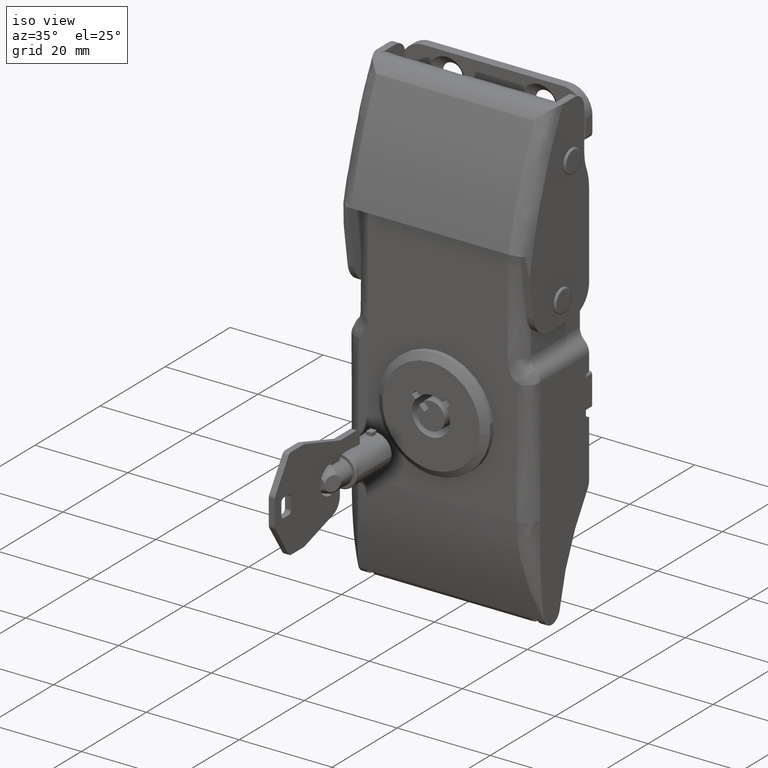
[diagram: clean part render]
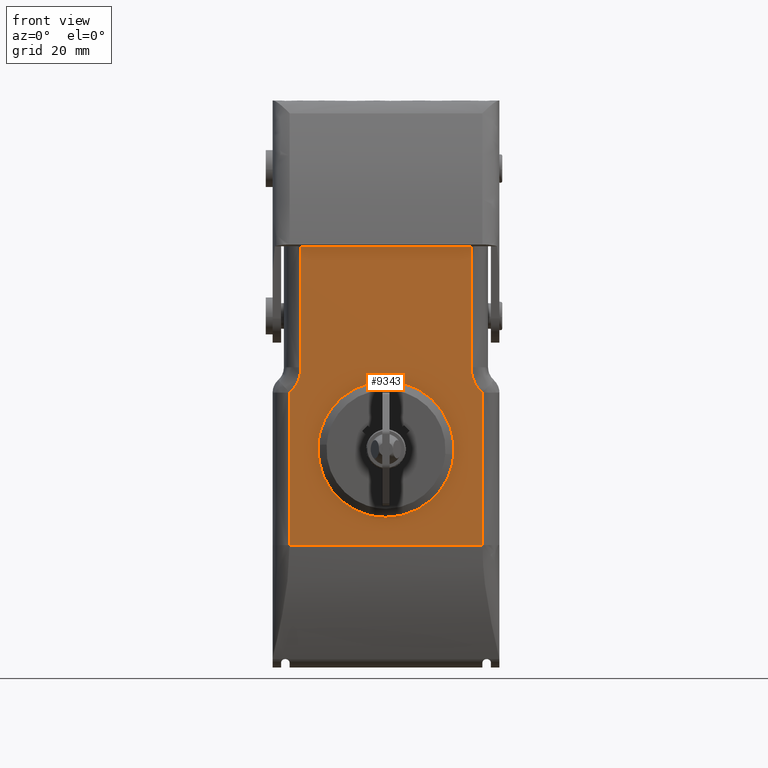
[diagram: tour spotlight — one face highlighted and labeled with its STEP entity id]
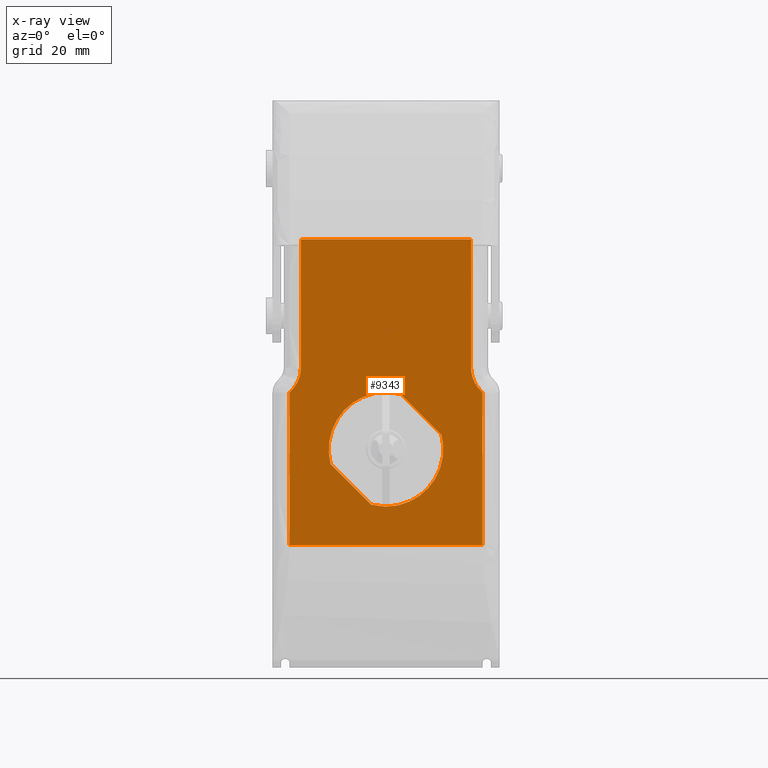
[diagram: x-ray of the same camera — body ghosted, this tour face saturated]
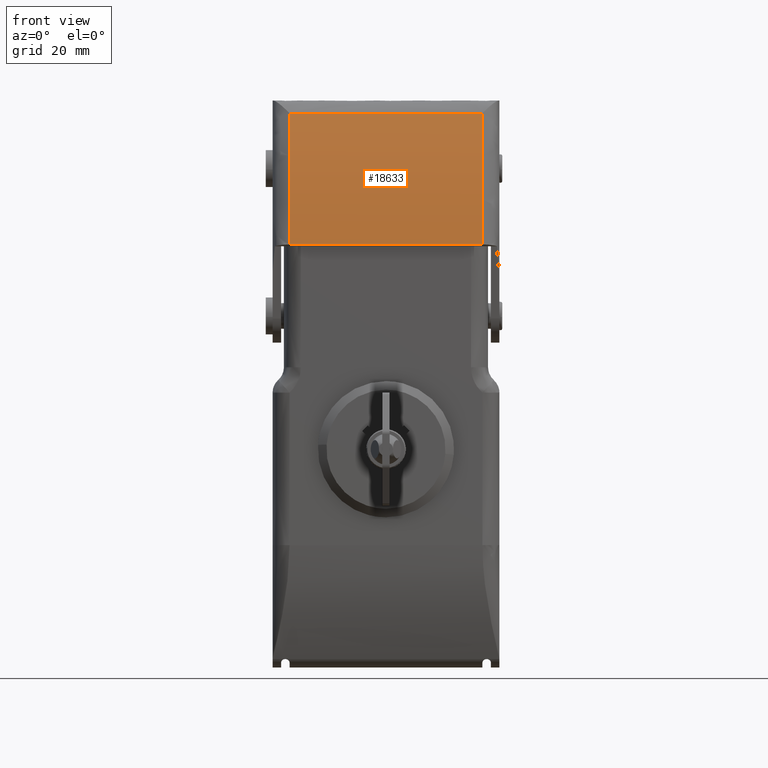
[diagram: tour spotlight — one face highlighted and labeled with its STEP entity id]
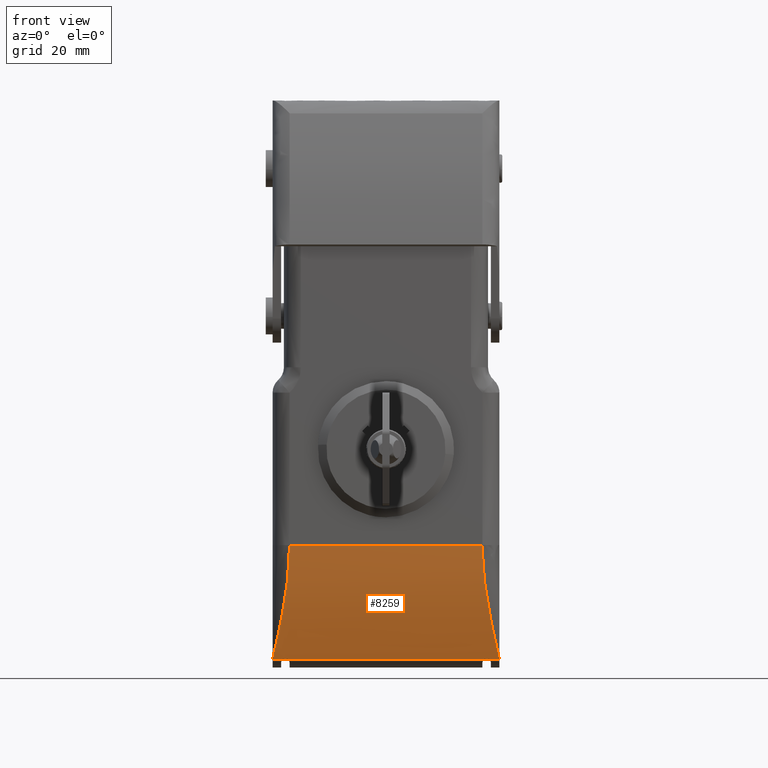
[diagram: tour spotlight — one face highlighted and labeled with its STEP entity id]
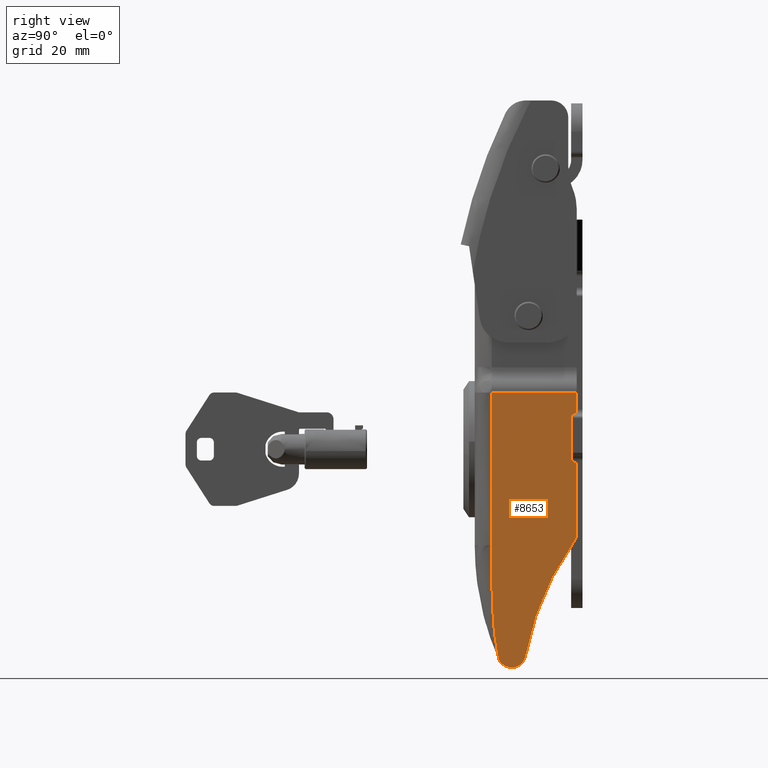
[diagram: tour spotlight — one face highlighted and labeled with its STEP entity id]
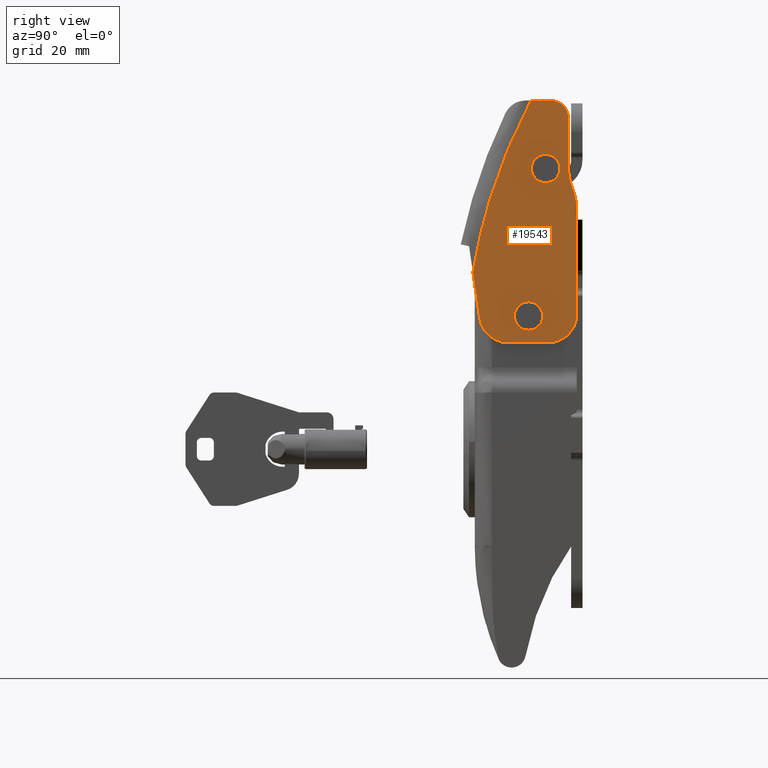
[diagram: tour spotlight — one face highlighted and labeled with its STEP entity id]
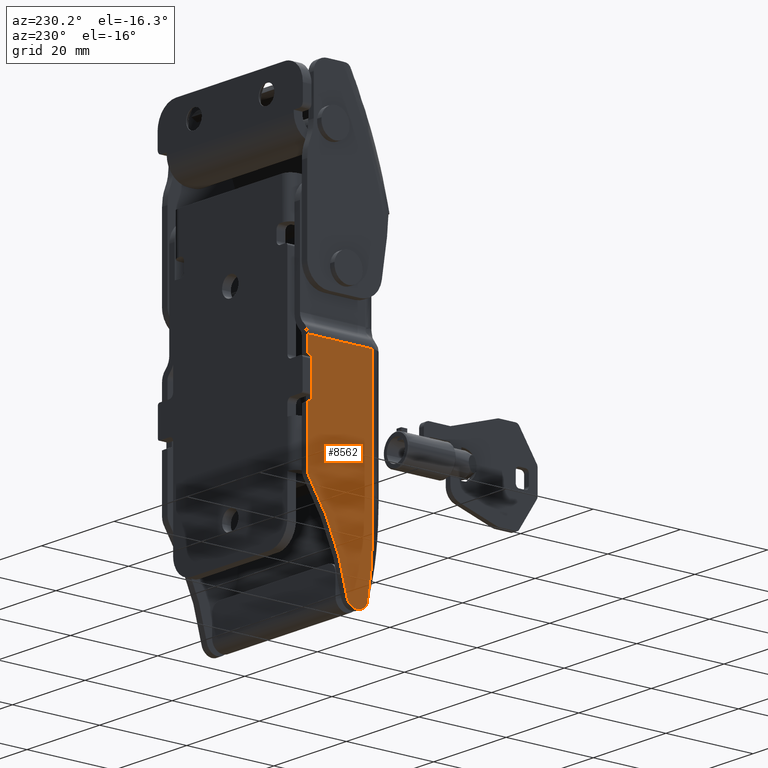
[diagram: tour spotlight — one face highlighted and labeled with its STEP entity id]
A machine part: a face-by-face anatomy tour. The part has 404 B-rep faces; the first image is the clean iso view, then the 6 largest visible faces are spotlighted one at a time (largest first), each with its STEP entity span.

Face 1 — front view, entity #9343. An x-ray twin of the same camera follows (body ghosted, this face saturated) — the face is partly hidden behind the body. In plain terms, the highlighted face is a freeform B-spline surface patch.
Definition (entity closure, byte-faithful):
#6194=CARTESIAN_POINT('',(2.620147750134060,-19.000000000005450,-13.283217527632200));
#6195=VERTEX_POINT('',#6194);
#6201=CARTESIAN_POINT('',(-9.754220920606741,-19.000000000002998,-25.657586198420550));
#6202=VERTEX_POINT('',#6201);
#6203=CARTESIAN_POINT('',(2.620147750134060,-19.000000000005450,-13.283217527632200));
#6204=CARTESIAN_POINT('',(-3.015504977081083,-19.000000000003002,-11.769386445243466));
#6205=CARTESIAN_POINT('',(-7.141778490049104,-19.000000000002998,-15.895659958227339));
#6206=CARTESIAN_POINT('',(-11.268052003017125,-19.000000000003002,-20.021933471211216));
#6207=CARTESIAN_POINT('',(-9.754220920606745,-19.000000000002998,-25.657586198420550));
#6215=(BOUNDED_CURVE()B_SPLINE_CURVE(2,(#6203,#6204,#6205,#6206,#6207),.UNSPECIFIED.,.F.,.U.)B_SPLINE_CURVE_WITH_KNOTS((3,2,3),(0.0,0.500000000000000,1.0),.UNSPECIFIED.)CURVE()GEOMETRIC_REPRESENTATION_ITEM()RATIONAL_B_SPLINE_CURVE((1.0,0.865869662871492,1.0,0.865869662871492,1.0))REPRESENTATION_ITEM(''));
#6216=EDGE_CURVE('',#6195,#6202,#6215,.T.);
#6256=CARTESIAN_POINT('',(-2.620147750274040,-19.000000000002998,-32.791659368753251));
#6257=VERTEX_POINT('',#6256);
#6258=CARTESIAN_POINT('',(-2.620147750274040,-19.000000000002998,-32.791659368753251));
#6259=CARTESIAN_POINT('',(-9.754220920606741,-19.000000000002998,-25.657586198420550));
#6260=QUASI_UNIFORM_CURVE('',1,(#6258,#6259),.UNSPECIFIED.,.F.,.U.);
#6261=EDGE_CURVE('',#6257,#6202,#6260,.T.);
#6286=CARTESIAN_POINT('',(9.754220920514301,-19.000000000002998,-20.417290698012401));
#6287=VERTEX_POINT('',#6286);
#6288=CARTESIAN_POINT('',(-2.620147750274037,-19.000000000002998,-32.791659368753237));
#6289=CARTESIAN_POINT('',(3.015504976935295,-19.000000000003002,-34.305490451163621));
#6290=CARTESIAN_POINT('',(7.141778489919166,-19.000000000002998,-30.179216938195591));
#6291=CARTESIAN_POINT('',(11.268052002903039,-19.000000000003002,-26.052943425227554));
#6292=CARTESIAN_POINT('',(9.754220920514298,-19.000000000002998,-20.417290698012408));
#6300=(BOUNDED_CURVE()B_SPLINE_CURVE(2,(#6288,#6289,#6290,#6291,#6292),.UNSPECIFIED.,.F.,.U.)B_SPLINE_CURVE_WITH_KNOTS((3,2,3),(0.0,0.500000000000000,1.0),.UNSPECIFIED.)CURVE()GEOMETRIC_REPRESENTATION_ITEM()RATIONAL_B_SPLINE_CURVE((1.0,0.865869662871492,1.0,0.865869662871492,1.0))REPRESENTATION_ITEM(''));
#6301=EDGE_CURVE('',#6257,#6287,#6300,.T.);
#6339=CARTESIAN_POINT('',(2.620147750134060,-19.000000000005450,-13.283217527632200));
#6340=CARTESIAN_POINT('',(9.754220920514301,-19.000000000002998,-20.417290698012401));
#6341=QUASI_UNIFORM_CURVE('',1,(#6339,#6340),.UNSPECIFIED.,.F.,.U.);
#6342=EDGE_CURVE('',#6195,#6287,#6341,.T.);
#6548=CARTESIAN_POINT('',(-17.000000000068301,-19.000000000003201,-39.921215972049502));
#6549=VERTEX_POINT('',#6548);
#6648=CARTESIAN_POINT('',(-17.000000000031552,-19.000000000002998,-13.018624220187499));
#6649=VERTEX_POINT('',#6648);
#6675=CARTESIAN_POINT('',(-17.000000000031552,-19.000000000002998,-13.018624220187499));
#6676=CARTESIAN_POINT('',(-17.000000000068251,-19.000000000002998,-21.986154804139801));
#6677=CARTESIAN_POINT('',(-17.000000000068251,-19.000000000002998,-30.953685388094652));
#6678=CARTESIAN_POINT('',(-17.000000000068301,-19.000000000003201,-39.921215972049502));
#6679=QUASI_UNIFORM_CURVE('',3,(#6675,#6676,#6677,#6678),.UNSPECIFIED.,.F.,.U.);
#6680=EDGE_CURVE('',#6649,#6549,#6679,.T.);
#6769=CARTESIAN_POINT('',(-15.000000000030351,-19.000000000002998,-8.546488265197050));
#6770=VERTEX_POINT('',#6769);
#6796=CARTESIAN_POINT('',(-15.000000000030351,-19.000000000002998,-8.546488265197050));
#6797=CARTESIAN_POINT('',(-15.000221131365899,-19.000000000002998,-9.817609685966653));
#6798=CARTESIAN_POINT('',(-15.526368155031060,-19.000000000002998,-10.994370843038800));
#6799=CARTESIAN_POINT('',(-16.052320885687980,-19.000000000002998,-12.170697451487699));
#6800=CARTESIAN_POINT('',(-17.000000000031552,-19.000000000002998,-13.018624220187499));
#6801=B_SPLINE_CURVE_WITH_KNOTS('',2,(#6796,#6797,#6798,#6799,#6800),.UNSPECIFIED.,.F.,.U.,(3,2,3),(0.0,0.500000000000000,1.0),.UNSPECIFIED.);
#6802=EDGE_CURVE('',#6770,#6649,#6801,.T.);
#6829=CARTESIAN_POINT('',(-14.999999999975801,-19.000000000002998,13.999999999585979));
#6830=VERTEX_POINT('',#6829);
#6852=CARTESIAN_POINT('',(-14.999999999975801,-19.000000000002998,13.999999999585979));
#6853=CARTESIAN_POINT('',(-14.999999999993960,-19.000000000002998,6.484503911324969));
#6854=CARTESIAN_POINT('',(-15.000000000012150,-19.000000000002998,-1.030992176936040));
#6855=CARTESIAN_POINT('',(-15.000000000030351,-19.000000000002998,-8.546488265197050));
#6856=B_SPLINE_CURVE_WITH_KNOTS('',3,(#6852,#6853,#6854,#6855),.UNSPECIFIED.,.F.,.U.,(4,4),(0.0,0.333333333333333),.UNSPECIFIED.);
#6857=EDGE_CURVE('',#6830,#6770,#6856,.T.);
#6914=CARTESIAN_POINT('',(16.999999999880352,-19.000000000003201,-39.921215972049502));
#6915=VERTEX_POINT('',#6914);
#7035=CARTESIAN_POINT('',(16.999999999973600,-19.000000000002998,-13.018624220263160));
#7036=VERTEX_POINT('',#7035);
#7052=CARTESIAN_POINT('',(16.999999999880352,-19.000000000003201,-39.921215972049502));
#7053=CARTESIAN_POINT('',(16.999999999880352,-19.000000000002998,-30.953685388124299));
#7054=CARTESIAN_POINT('',(16.999999999880352,-19.000000000002998,-21.986154804199099));
#7055=CARTESIAN_POINT('',(16.999999999973600,-19.000000000002998,-13.018624220263160));
#7056=QUASI_UNIFORM_CURVE('',3,(#7052,#7053,#7054,#7055),.UNSPECIFIED.,.F.,.U.);
#7057=EDGE_CURVE('',#6915,#7036,#7056,.T.);
#7166=CARTESIAN_POINT('',(14.999999999992280,-19.000000000002998,-8.546488265263811));
#7167=VERTEX_POINT('',#7166);
#7181=CARTESIAN_POINT('',(16.999999999973600,-19.000000000002998,-13.018624220263160));
#7182=CARTESIAN_POINT('',(16.052709452708982,-19.000000000002998,-12.171045118246450));
#7183=CARTESIAN_POINT('',(15.526368154977989,-19.000000000002998,-10.994370843110801));
#7184=CARTESIAN_POINT('',(15.000221222033041,-19.000000000002998,-9.818131084599553));
#7185=CARTESIAN_POINT('',(14.999999999992280,-19.000000000002998,-8.546488265263811));
#7186=B_SPLINE_CURVE_WITH_KNOTS('',2,(#7181,#7182,#7183,#7184,#7185),.UNSPECIFIED.,.F.,.U.,(3,2,3),(0.0,0.500000000000000,1.0),.UNSPECIFIED.);
#7187=EDGE_CURVE('',#7036,#7167,#7186,.T.);
#7212=CARTESIAN_POINT('',(15.000000000038099,-19.000000000002998,13.999999999585979));
#7213=VERTEX_POINT('',#7212);
#7229=CARTESIAN_POINT('',(14.999999999992280,-19.000000000002998,-8.546488265263811));
#7230=CARTESIAN_POINT('',(15.000000000007550,-19.000000000002998,-1.030992176978514));
#7231=CARTESIAN_POINT('',(15.000000000022849,-19.000000000002998,6.484503911306780));
#7232=CARTESIAN_POINT('',(15.000000000038099,-19.000000000002998,13.999999999585979));
#7233=B_SPLINE_CURVE_WITH_KNOTS('',3,(#7229,#7230,#7231,#7232),.UNSPECIFIED.,.F.,.U.,(4,4),(0.0,0.333333333333333),.UNSPECIFIED.);
#7234=EDGE_CURVE('',#7167,#7213,#7233,.T.);
#8239=CARTESIAN_POINT('',(16.999999999880352,-19.000000000003201,-39.921215972049502));
#8240=CARTESIAN_POINT('',(-17.000000000068301,-19.000000000003201,-39.921215972049502));
#8241=QUASI_UNIFORM_CURVE('',1,(#8239,#8240),.UNSPECIFIED.,.F.,.U.);
#8242=EDGE_CURVE('',#6915,#6549,#8241,.T.);
#8667=CARTESIAN_POINT('',(15.000000000038099,-19.000000000002998,13.999999999585979));
#8668=CARTESIAN_POINT('',(-14.999999999975801,-19.000000000002998,13.999999999585979));
#8669=QUASI_UNIFORM_CURVE('',1,(#8667,#8668),.UNSPECIFIED.,.F.,.U.);
#8670=EDGE_CURVE('',#7213,#6830,#8669,.T.);
#9322=CARTESIAN_POINT('',(-18.698299934171800,-19.000000000002998,16.693364440214939));
#9323=CARTESIAN_POINT('',(-18.698299934171800,-19.000000000002998,-42.614578002212284));
#9324=CARTESIAN_POINT('',(18.698300846028161,-19.000000000002998,16.693364440214939));
#9325=CARTESIAN_POINT('',(18.698300846028161,-19.000000000002998,-42.614578002212284));
#9326=B_SPLINE_SURFACE_WITH_KNOTS('',1,1,((#9322,#9324),(#9323,#9325)),.UNSPECIFIED.,.F.,.F.,.U.,(2,2),(2,2),(0.0,59.307942442427219),(0.0,37.396600780199961),.UNSPECIFIED.);
#9327=ORIENTED_EDGE('',*,*,#6802,.T.);
#9328=ORIENTED_EDGE('',*,*,#6680,.T.);
#9329=ORIENTED_EDGE('',*,*,#8242,.F.);
#9330=ORIENTED_EDGE('',*,*,#7057,.T.);
#9331=ORIENTED_EDGE('',*,*,#7187,.T.);
#9332=ORIENTED_EDGE('',*,*,#7234,.T.);
#9333=ORIENTED_EDGE('',*,*,#8670,.T.);
#9334=ORIENTED_EDGE('',*,*,#6857,.T.);
#9335=EDGE_LOOP('',(#9327,#9328,#9329,#9330,#9331,#9332,#9333,#9334));
#9336=FACE_OUTER_BOUND('',#9335,.T.);
#9337=ORIENTED_EDGE('',*,*,#6216,.F.);
#9338=ORIENTED_EDGE('',*,*,#6342,.T.);
#9339=ORIENTED_EDGE('',*,*,#6301,.F.);
#9340=ORIENTED_EDGE('',*,*,#6261,.T.);
#9341=EDGE_LOOP('',(#9337,#9338,#9339,#9340));
#9342=FACE_BOUND('',#9341,.T.);
#9343=ADVANCED_FACE('',(#9336,#9342),#9326,.T.);

Face 2 — front view, entity #18633. In plain terms, the highlighted face is a freeform B-spline surface patch.
Definition (entity closure, byte-faithful):
#18165=CARTESIAN_POINT('',(16.999999999976350,-13.604601533551060,36.234026465456452));
#18166=VERTEX_POINT('',#18165);
#18201=CARTESIAN_POINT('',(16.999999999976350,-21.467932435706651,13.108503425658499));
#18202=VERTEX_POINT('',#18201);
#18203=CARTESIAN_POINT('',(16.999999999976350,-21.467932435706590,13.108503425658450));
#18204=CARTESIAN_POINT('',(16.999999999976353,-18.937730875137159,25.147802245904046));
#18205=CARTESIAN_POINT('',(16.999999999976350,-13.604601533551101,36.234026465456438));
#18213=(BOUNDED_CURVE()B_SPLINE_CURVE(2,(#18203,#18204,#18205),.UNSPECIFIED.,.F.,.U.)CURVE()GEOMETRIC_REPRESENTATION_ITEM()QUASI_UNIFORM_CURVE()RATIONAL_B_SPLINE_CURVE((1.0,0.992734632860913,1.0))REPRESENTATION_ITEM(''));
#18214=EDGE_CURVE('',#18202,#18166,#18213,.T.);
#18333=CARTESIAN_POINT('',(-16.999999999997900,-21.467932435706651,13.108503425658499));
#18334=VERTEX_POINT('',#18333);
#18348=CARTESIAN_POINT('',(-16.999999999997900,-13.604601533551060,36.234026465456452));
#18349=VERTEX_POINT('',#18348);
#18350=CARTESIAN_POINT('',(-16.999999999997900,-13.604601533551090,36.234026465456459));
#18351=CARTESIAN_POINT('',(-16.999999999997897,-18.937730875137138,25.147802245904096));
#18352=CARTESIAN_POINT('',(-16.999999999997900,-21.467932435706579,13.108503425658469));
#18360=(BOUNDED_CURVE()B_SPLINE_CURVE(2,(#18350,#18351,#18352),.UNSPECIFIED.,.F.,.U.)CURVE()GEOMETRIC_REPRESENTATION_ITEM()QUASI_UNIFORM_CURVE()RATIONAL_B_SPLINE_CURVE((1.0,0.992734632860913,1.0))REPRESENTATION_ITEM(''));
#18361=EDGE_CURVE('',#18349,#18334,#18360,.T.);
#18505=CARTESIAN_POINT('',(16.999999999976350,-13.604601533551060,36.234026465456452));
#18506=CARTESIAN_POINT('',(-16.999999999997900,-13.604601533551060,36.234026465456452));
#18507=QUASI_UNIFORM_CURVE('',1,(#18505,#18506),.UNSPECIFIED.,.F.,.U.);
#18508=EDGE_CURVE('',#18166,#18349,#18507,.T.);
#18609=CARTESIAN_POINT('',(-17.849999999997259,-21.711438357472375,11.914264314299245));
#18610=CARTESIAN_POINT('',(17.871249999975685,-21.711438357472375,11.914264314299245));
#18611=CARTESIAN_POINT('',(-17.849999999997266,-19.085661781245445,25.198950589309923));
#18612=CARTESIAN_POINT('',(17.871249999975689,-19.085661781245445,25.198950589309923));
#18613=CARTESIAN_POINT('',(-17.849999999997259,-13.068946819403648,37.330592404071346));
#18614=CARTESIAN_POINT('',(17.871249999975696,-13.068946819403648,37.330592404071346));
#18622=(BOUNDED_SURFACE()B_SPLINE_SURFACE(1,2,((#18609,#18611,#18613),(#18610,#18612,#18614)),.UNSPECIFIED.,.F.,.F.,.U.)B_SPLINE_SURFACE_WITH_KNOTS((2,2),(3,3),(0.0,35.721249999972947),(0.0,26.963934712268308),.UNSPECIFIED.)GEOMETRIC_REPRESENTATION_ITEM()RATIONAL_B_SPLINE_SURFACE(((0.998935719609841,0.989486783376291,0.997573255418272),(0.998935719609841,0.989486783376291,0.997573255418272)))REPRESENTATION_ITEM('')SURFACE());
#18623=CARTESIAN_POINT('',(-16.999999999997900,-21.467932435706651,13.108503425658499));
#18624=CARTESIAN_POINT('',(16.999999999976350,-21.467932435706651,13.108503425658499));
#18625=QUASI_UNIFORM_CURVE('',1,(#18623,#18624),.UNSPECIFIED.,.F.,.U.);
#18626=EDGE_CURVE('',#18334,#18202,#18625,.T.);
#18627=ORIENTED_EDGE('',*,*,#18626,.T.);
#18628=ORIENTED_EDGE('',*,*,#18214,.T.);
#18629=ORIENTED_EDGE('',*,*,#18508,.T.);
#18630=ORIENTED_EDGE('',*,*,#18361,.T.);
#18631=EDGE_LOOP('',(#18627,#18628,#18629,#18630));
#18632=FACE_OUTER_BOUND('',#18631,.T.);
#18633=ADVANCED_FACE('',(#18632),#18622,.T.);

Face 3 — front view, entity #8259. In plain terms, the highlighted face is a freeform B-spline surface patch.
Definition (entity closure, byte-faithful):
#6520=CARTESIAN_POINT('',(-20.000000000068201,-14.789473684203299,-60.004146528219202));
#6521=VERTEX_POINT('',#6520);
#6548=CARTESIAN_POINT('',(-17.000000000068301,-19.000000000003201,-39.921215972049502));
#6549=VERTEX_POINT('',#6548);
#6550=CARTESIAN_POINT('',(-17.000000000068301,-19.000000000003201,-39.921215972049502));
#6551=CARTESIAN_POINT('',(-17.000014488893228,-18.999986334286199,-39.949303284006277));
#6552=CARTESIAN_POINT('',(-17.000043488503849,-18.999958982139638,-40.005520478668537));
#6553=CARTESIAN_POINT('',(-17.000276876262891,-18.999737492162350,-40.089909708611309));
#6554=CARTESIAN_POINT('',(-17.000649197988569,-18.999383147900730,-40.174425902272340));
#6555=CARTESIAN_POINT('',(-17.001174146746290,-18.998882337233141,-40.259068815385817));
#6556=CARTESIAN_POINT('',(-17.001848045134420,-18.998237896720109,-40.343838201569959));
#6557=CARTESIAN_POINT('',(-17.002671880747819,-18.997448244783389,-40.428733812224358));
#6558=CARTESIAN_POINT('',(-17.003645388351490,-18.996512985688600,-40.513755396547928));
#6559=CARTESIAN_POINT('',(-17.004768639173012,-18.995431404550828,-40.598902701524800));
#6560=CARTESIAN_POINT('',(-17.006041614075329,-18.994202871523580,-40.684175471918323));
#6561=CARTESIAN_POINT('',(-17.007464318194550,-18.992826733257861,-40.769573450263259));
#6562=CARTESIAN_POINT('',(-17.009036750143661,-18.991302342060159,-40.855096376858349));
#6563=CARTESIAN_POINT('',(-17.010758910291180,-18.989629048069901,-40.940743989758843));
#6564=CARTESIAN_POINT('',(-17.012630798532051,-18.987806201368588,-41.026516024769030));
#6565=CARTESIAN_POINT('',(-17.014652414888641,-18.985833151421598,-41.112412215434588));
#6566=CARTESIAN_POINT('',(-17.016823759350309,-18.983709247236579,-41.198432293035403));
#6567=CARTESIAN_POINT('',(-17.019144831913920,-18.981433837329149,-41.284575986577757));
#6568=CARTESIAN_POINT('',(-17.021615632575489,-18.979006269740751,-41.370843022787113));
#6569=CARTESIAN_POINT('',(-17.024236161330641,-18.976425892042279,-41.457233126100540));
#6570=CARTESIAN_POINT('',(-17.027006418175699,-18.973692051341619,-41.543746018659263));
#6571=CARTESIAN_POINT('',(-17.029926403106028,-18.970804094290440,-41.630381420301063));
#6572=CARTESIAN_POINT('',(-17.032996116118650,-18.967761367090748,-41.717139048554067));
#6573=CARTESIAN_POINT('',(-17.036215557208269,-18.964563215502469,-41.804018618623687));
#6574=CARTESIAN_POINT('',(-17.039584726374379,-18.961208984848430,-41.891019843407257));
#6575=CARTESIAN_POINT('',(-17.043103623601709,-18.957698020027859,-41.978142433402979));
#6576=CARTESIAN_POINT('',(-17.046772248928409,-18.954029665499821,-42.065386097016543));
#6577=CARTESIAN_POINT('',(-17.050590602193498,-18.950203265378072,-42.152750539377692));
#6578=CARTESIAN_POINT('',(-17.054558683982961,-18.946218163109499,-42.240235466732699));
#6579=CARTESIAN_POINT('',(-17.058676492087091,-18.942073702711379,-42.327840569978861));
#6580=CARTESIAN_POINT('',(-17.062944034754398,-18.937769224176751,-42.415565586219763));
#6581=CARTESIAN_POINT('',(-17.076493145986522,-18.924073197104260,-42.685012785873162));
#6582=CARTESIAN_POINT('',(-17.102350998354471,-18.897725144897802,-43.138750067081517));
#6583=CARTESIAN_POINT('',(-17.146136104447400,-18.852357488731592,-43.778870373780677));
#6584=CARTESIAN_POINT('',(-17.197668571514971,-18.798032323794558,-44.426614484048571));
#6585=CARTESIAN_POINT('',(-17.255882175334790,-18.735579187485211,-45.070072958907723));
#6586=CARTESIAN_POINT('',(-17.320403451504941,-18.665165734331019,-45.709667284386263));
#6587=CARTESIAN_POINT('',(-17.390850744056149,-18.586926828610441,-46.345835138194488));
#6588=CARTESIAN_POINT('',(-17.468455959811539,-18.499155851680769,-46.990647346469068));
#6589=CARTESIAN_POINT('',(-17.578826716613818,-18.371982486135011,-47.841311759886779));
#6590=CARTESIAN_POINT('',(-17.731475637076471,-18.191381047685059,-48.908114905676207));
#6591=CARTESIAN_POINT('',(-17.931817713203841,-17.944915474993810,-50.165651056960989));
#6592=CARTESIAN_POINT('',(-18.152756091710270,-17.662186071068401,-51.434163380786622));
#6593=CARTESIAN_POINT('',(-18.385017745897141,-17.352208012547191,-52.673268977552340));
#6594=CARTESIAN_POINT('',(-18.635126251297901,-17.003917334574261,-53.927653995522071));
#6595=CARTESIAN_POINT('',(-18.889329514263611,-16.633330875740612,-55.139948920379183));
#6596=CARTESIAN_POINT('',(-19.160223581939938,-16.219809149917111,-56.378626300691792));
#6597=CARTESIAN_POINT('',(-19.386279051373450,-15.856862138340210,-57.379008302931943));
#6598=CARTESIAN_POINT('',(-19.576670694999521,-15.538751714371219,-58.204644579648942));
#6599=CARTESIAN_POINT('',(-19.678080774618721,-15.364632646699210,-58.639724913974597));
#6600=CARTESIAN_POINT('',(-19.744899915870459,-15.247949311697180,-58.924691356725653));
#6601=CARTESIAN_POINT('',(-19.772656447951061,-15.199233007994870,-59.042850455025743));
#6602=CARTESIAN_POINT('',(-19.803354425820551,-15.145035373498301,-59.173307494944353));
#6603=CARTESIAN_POINT('',(-19.836994555649291,-15.085250678385581,-59.316017205764609));
#6604=CARTESIAN_POINT('',(-19.873576618653200,-15.019767850027121,-59.470931546348837));
#6605=CARTESIAN_POINT('',(-19.913100892187110,-14.948447374879301,-59.637989169086772));
#6606=CARTESIAN_POINT('',(-19.955566562804020,-14.871218474116970,-59.817158179999304));
#6607=CARTESIAN_POINT('',(-19.984863187623208,-14.817321080881451,-59.940446582173038));
#6608=CARTESIAN_POINT('',(-20.000000000068201,-14.789473684203299,-60.004146528219202));
#6609=B_SPLINE_CURVE_WITH_KNOTS('',3,(#6550,#6551,#6552,#6553,#6554,#6555,#6556,#6557,#6558,#6559,#6560,#6561,#6562,#6563,#6564,#6565,#6566,#6567,#6568,#6569,#6570,#6571,#6572,#6573,#6574,#6575,#6576,#6577,#6578,#6579,#6580,#6581,#6582,#6583,#6584,#6585,#6586,#6587,#6588,#6589,#6590,#6591,#6592,#6593,#6594,#6595,#6596,#6597,#6598,#6599,#6600,#6601,#6602,#6603,#6604,#6605,#6606,#6607,#6608),.UNSPECIFIED.,.F.,.U.,(4,1,1,1,1,1,1,1,1,1,1,1,1,1,1,1,1,1,1,1,1,1,1,1,1,1,1,1,1,1,1,1,1,1,1,1,1,1,1,1,1,1,1,1,1,1,1,1,1,1,1,1,1,1,1,1,4),(0.0,0.004026865276500,0.008059833902090,0.012098918514795,0.016144131695300,0.020195485967217,0.024252993797276,0.028316667595584,0.032386519715831,0.036462562455553,0.040544808056309,0.044633268703967,0.048727956528893,0.052828883606193,0.056936061955954,0.061049503543447,0.065169220279386,0.069295224020127,0.073427526567912,0.077566139671107,0.081711075024402,0.085862344269071,0.090019958993167,0.094183930731783,0.098354270967246,0.102530991129370,0.106714102595671,0.110903616691585,0.115099544690715,0.119301897815038,0.123510687235137,0.153828699650016,0.184565313295252,0.215724344124444,0.247309454977977,0.277621783161750,0.308435494346749,0.339753298900463,0.371577778378164,0.432756947394254,0.496388202241362,0.557504892241172,0.621735096837420,0.682490309740912,0.747541765285574,0.807074915383985,0.873681959743895,0.903496617208914,0.936829664324569,0.942421555095257,0.948671846255288,0.955580537827662,0.963147629789777,0.971373122084378,0.980257014626471,0.989799307307813,1.0),.UNSPECIFIED.);
#6610=EDGE_CURVE('',#6549,#6521,#6609,.T.);
#6912=CARTESIAN_POINT('',(19.999999999880352,-14.789473684203299,-60.004146528219202));
#6913=VERTEX_POINT('',#6912);
#6914=CARTESIAN_POINT('',(16.999999999880352,-19.000000000003201,-39.921215972049502));
#6915=VERTEX_POINT('',#6914);
#6916=CARTESIAN_POINT('',(19.999999999880352,-14.789473684203299,-60.004146528219202));
#6917=CARTESIAN_POINT('',(19.992755373208901,-14.802820236509710,-59.973668502330277));
#6918=CARTESIAN_POINT('',(19.978482421716450,-14.829114854890801,-59.913622428904873));
#6919=CARTESIAN_POINT('',(19.957400509514379,-14.867737332260131,-59.824820729545223));
#6920=CARTESIAN_POINT('',(19.936969780174142,-14.905019323141470,-59.738685572551653));
#6921=CARTESIAN_POINT('',(19.917190434250401,-14.940960495786950,-59.655217036878682));
#6922=CARTESIAN_POINT('',(19.898062420149991,-14.975579639936109,-59.574423584599558));
#6923=CARTESIAN_POINT('',(19.879585750635460,-15.008890075928280,-59.496311205699392));
#6924=CARTESIAN_POINT('',(19.861760422003201,-15.040905931597511,-59.420886195368830));
#6925=CARTESIAN_POINT('',(19.844586434662471,-15.071640539569859,-59.348154451125737));
#6926=CARTESIAN_POINT('',(19.828063787921320,-15.101106842862681,-59.278121656716337));
#6927=CARTESIAN_POINT('',(19.812192481174531,-15.129317289625771,-59.210793240248307));
#6928=CARTESIAN_POINT('',(19.796972513997112,-15.156283857740011,-59.146174389422320));
#6929=CARTESIAN_POINT('',(19.782403884630892,-15.182018046509970,-59.084270052338802));
#6930=CARTESIAN_POINT('',(19.768486595450110,-15.206530877095901,-59.025084941007933));
#6931=CARTESIAN_POINT('',(19.755220633697551,-15.229832889709160,-58.968623536694921));
#6932=CARTESIAN_POINT('',(19.742606038230718,-15.251934145623750,-58.914890085275502));
#6933=CARTESIAN_POINT('',(19.730642668300739,-15.272844214525900,-58.863888627317827));
#6934=CARTESIAN_POINT('',(19.673597961659961,-15.372332445191640,-58.620484754977099));
#6935=CARTESIAN_POINT('',(19.576673448944302,-15.538745955501110,-58.204659213015717));
#6936=CARTESIAN_POINT('',(19.386286136963239,-15.856851182398501,-57.379037608491267));
#6937=CARTESIAN_POINT('',(19.160226817948669,-16.219803982262970,-56.378641098494882));
#6938=CARTESIAN_POINT('',(18.889335992416740,-16.633321215129008,-55.139979125418733));
#6939=CARTESIAN_POINT('',(18.635129464510591,-17.003912833203970,-53.927669402488618));
#6940=CARTESIAN_POINT('',(18.385023745218280,-17.352199794941221,-52.673300119969902));
#6941=CARTESIAN_POINT('',(18.152758998066819,-17.662182346210422,-51.434179105271241));
#6942=CARTESIAN_POINT('',(17.931822990187289,-17.944908845670032,-50.165682718694548));
#6943=CARTESIAN_POINT('',(17.731478017690819,-18.191378130997990,-48.908130851202273));
#6944=CARTESIAN_POINT('',(17.578830779241951,-18.371978066571259,-47.841339738592588));
#6945=CARTESIAN_POINT('',(17.468459050510980,-18.499151730136340,-46.990675450520321));
#6946=CARTESIAN_POINT('',(17.390855418538731,-18.586921619415381,-46.345875344376012));
#6947=CARTESIAN_POINT('',(17.320406900274531,-18.665162553091449,-45.709695468202568));
#6948=CARTESIAN_POINT('',(17.255884488502570,-18.735576679498230,-45.070097174658933));
#6949=CARTESIAN_POINT('',(17.197670490235421,-18.798029656606360,-44.426642780736060));
#6950=CARTESIAN_POINT('',(17.146139141507572,-18.852354354550179,-43.778910882234008));
#6951=CARTESIAN_POINT('',(17.102353249568338,-18.897723429476251,-43.138778277759599));
#6952=CARTESIAN_POINT('',(17.075037185830080,-18.925557096400759,-42.659460331567431));
#6953=CARTESIAN_POINT('',(17.059147064987279,-18.941603100839870,-42.338923419829221));
#6954=CARTESIAN_POINT('',(17.051513353372311,-18.949280459880288,-42.174738171385997));
#6955=CARTESIAN_POINT('',(17.044406039388420,-18.956399355348051,-42.010975592595393));
#6956=CARTESIAN_POINT('',(17.037825110791339,-18.962964114571680,-41.847637518692693));
#6957=CARTESIAN_POINT('',(17.031770570868119,-18.968979048998200,-41.684725902606800));
#6958=CARTESIAN_POINT('',(17.026242419187231,-18.974448467346310,-41.522242629295889));
#6959=CARTESIAN_POINT('',(17.021240654744801,-18.979376673773459,-41.360189565500228));
#6960=CARTESIAN_POINT('',(17.016765282511010,-18.983767961170361,-41.198568546685429));
#6961=CARTESIAN_POINT('',(17.012816284245211,-18.987626638732181,-41.037381380744073));
#6962=CARTESIAN_POINT('',(17.009393728238731,-18.990956927850100,-40.876629847225473));
#6963=CARTESIAN_POINT('',(17.006497361160491,-18.993763348500529,-40.716315697763257));
#6964=CARTESIAN_POINT('',(17.004128124899211,-18.996049282577889,-40.556440656166323));
#6965=CARTESIAN_POINT('',(17.002282519725028,-18.997822312073019,-40.397006418665647));
#6966=CARTESIAN_POINT('',(17.000973551738401,-18.999074380789349,-40.238014653873371));
#6967=CARTESIAN_POINT('',(17.000152888302321,-18.999855516343342,-40.079467003736482));
#6968=CARTESIAN_POINT('',(17.000050914481928,-18.999951884339449,-39.973916418844183));
#6969=CARTESIAN_POINT('',(16.999999999880352,-19.000000000003201,-39.921215972049502));
#6970=B_SPLINE_CURVE_WITH_KNOTS('',3,(#6916,#6917,#6918,#6919,#6920,#6921,#6922,#6923,#6924,#6925,#6926,#6927,#6928,#6929,#6930,#6931,#6932,#6933,#6934,#6935,#6936,#6937,#6938,#6939,#6940,#6941,#6942,#6943,#6944,#6945,#6946,#6947,#6948,#6949,#6950,#6951,#6952,#6953,#6954,#6955,#6956,#6957,#6958,#6959,#6960,#6961,#6962,#6963,#6964,#6965,#6966,#6967,#6968,#6969),.UNSPECIFIED.,.F.,.U.,(4,1,1,1,1,1,1,1,1,1,1,1,1,1,1,1,1,1,1,1,1,1,1,1,1,1,1,1,1,1,1,1,1,1,1,1,1,1,1,1,1,1,1,1,1,1,1,1,1,1,1,4),(0.0,0.004881991264533,0.009618221567240,0.014208690907343,0.018653399284513,0.022952346698899,0.027105533151194,0.031112958642673,0.034974623175292,0.038690526751760,0.042260669375632,0.045685051051450,0.048963671784891,0.052096531582942,0.055083630454160,0.057924968408934,0.060620545459885,0.063170361622327,0.096501113075991,0.126318069510101,0.192922822417804,0.252458270587143,0.317507384262875,0.378264945615608,0.442492801466469,0.503611846755314,0.567240757758667,0.628422277124625,0.660245003167574,0.691562224279706,0.722376522147463,0.752690606969471,0.784273969066518,0.815432417989880,0.846169616769213,0.876489381123369,0.884375316346555,0.892238693052836,0.900079585333456,0.907898067918879,0.915694216184006,0.923468106153382,0.931219814506455,0.938949418582809,0.946656996387431,0.954342626595978,0.962006388560039,0.969648362312422,0.977268628572442,0.984867268751197,0.992444364956868,1.0),.UNSPECIFIED.);
#6971=EDGE_CURVE('',#6913,#6915,#6970,.T.);
#7336=CARTESIAN_POINT('',(-17.750000000143501,-14.789473684203299,-60.004146528219202));
#7337=VERTEX_POINT('',#7336);
#7488=CARTESIAN_POINT('',(17.749999999880352,-14.789473684203299,-60.004146528219202));
#7489=VERTEX_POINT('',#7488);
#7677=CARTESIAN_POINT('',(-17.750000000143501,-14.789473684203299,-60.004146528219202));
#7678=CARTESIAN_POINT('',(17.749999999880352,-14.789473684203299,-60.004146528219202));
#7679=QUASI_UNIFORM_CURVE('',1,(#7677,#7678),.UNSPECIFIED.,.F.,.U.);
#7680=EDGE_CURVE('',#7337,#7489,#7679,.T.);
#8225=CARTESIAN_POINT('',(20.999999999879059,-18.998096153211751,-39.484889197130848));
#8226=CARTESIAN_POINT('',(-21.025000000066878,-18.998096153211751,-39.484889197130848));
#8227=CARTESIAN_POINT('',(20.999999999879059,-19.096257456581679,-50.733060445227174));
#8228=CARTESIAN_POINT('',(-21.025000000066882,-19.096257456581679,-50.733060445227174));
#8229=CARTESIAN_POINT('',(20.999999999879059,-14.367725928976826,-60.939528083956404));
#8230=CARTESIAN_POINT('',(-21.025000000066875,-14.367725928976826,-60.939528083956404));
#8238=(BOUNDED_SURFACE()B_SPLINE_SURFACE(1,2,((#8225,#8227,#8229),(#8226,#8228,#8230)),.UNSPECIFIED.,.F.,.F.,.U.)B_SPLINE_SURFACE_WITH_KNOTS((2,2),(3,3),(0.0,42.024999999945948),(0.0,22.219509123404130),.UNSPECIFIED.)GEOMETRIC_REPRESENTATION_ITEM()RATIONAL_B_SPLINE_SURFACE(((1.0,0.974063428162684,0.996820582029704),(1.0,0.974063428162684,0.996820582029704)))REPRESENTATION_ITEM('')SURFACE());
#8239=CARTESIAN_POINT('',(16.999999999880352,-19.000000000003201,-39.921215972049502));
#8240=CARTESIAN_POINT('',(-17.000000000068301,-19.000000000003201,-39.921215972049502));
#8241=QUASI_UNIFORM_CURVE('',1,(#8239,#8240),.UNSPECIFIED.,.F.,.U.);
#8242=EDGE_CURVE('',#6915,#6549,#8241,.T.);
#8243=ORIENTED_EDGE('',*,*,#8242,.T.);
#8244=ORIENTED_EDGE('',*,*,#6610,.T.);
#8245=CARTESIAN_POINT('',(-17.750000000143501,-14.789473684203299,-60.004146528219202));
#8246=CARTESIAN_POINT('',(-20.000000000068201,-14.789473684203299,-60.004146528219202));
#8247=QUASI_UNIFORM_CURVE('',1,(#8245,#8246),.UNSPECIFIED.,.F.,.U.);
#8248=EDGE_CURVE('',#7337,#6521,#8247,.T.);
#8249=ORIENTED_EDGE('',*,*,#8248,.F.);
#8250=ORIENTED_EDGE('',*,*,#7680,.T.);
#8251=CARTESIAN_POINT('',(19.999999999880352,-14.789473684203299,-60.004146528219202));
#8252=CARTESIAN_POINT('',(17.749999999880352,-14.789473684203299,-60.004146528219202));
#8253=QUASI_UNIFORM_CURVE('',1,(#8251,#8252),.UNSPECIFIED.,.F.,.U.);
#8254=EDGE_CURVE('',#6913,#7489,#8253,.T.);
#8255=ORIENTED_EDGE('',*,*,#8254,.F.);
#8256=ORIENTED_EDGE('',*,*,#6971,.T.);
#8257=EDGE_LOOP('',(#8243,#8244,#8249,#8250,#8255,#8256));
#8258=FACE_OUTER_BOUND('',#8257,.T.);
#8259=ADVANCED_FACE('',(#8258),#8238,.T.);

Face 4 — right view, entity #8653. In plain terms, the highlighted face is a freeform B-spline surface patch.
Definition (entity closure, byte-faithful):
#6912=CARTESIAN_POINT('',(19.999999999880352,-14.789473684203299,-60.004146528219202));
#6913=VERTEX_POINT('',#6912);
#6973=CARTESIAN_POINT('',(19.999999999880352,-16.000000000002998,-39.921215972049502));
#6974=VERTEX_POINT('',#6973);
#6975=CARTESIAN_POINT('',(19.999999999880352,-16.000000000002998,-39.921215972049502));
#6976=CARTESIAN_POINT('',(19.999999999880352,-16.000001390878950,-40.439075585315493));
#6977=CARTESIAN_POINT('',(19.999999999880352,-16.001559421496900,-41.135629626846701));
#6978=CARTESIAN_POINT('',(19.999999999880352,-16.002919739350752,-41.743791551259797));
#6979=CARTESIAN_POINT('',(19.999999999880352,-16.004636800298499,-42.351952573088901));
#6980=CARTESIAN_POINT('',(19.999999999880352,-16.008666059926050,-43.779064787995701));
#6981=CARTESIAN_POINT('',(19.999999999880352,-16.005740120937951,-44.795765999313851));
#6982=CARTESIAN_POINT('',(19.999999999880352,-16.001841474739649,-46.150462159536602));
#6983=CARTESIAN_POINT('',(19.999999999880352,-15.983631469862150,-47.262455501705801));
#6984=CARTESIAN_POINT('',(19.999999999880352,-15.961986667992949,-48.584194607927202));
#6985=CARTESIAN_POINT('',(19.999999999880352,-15.917436492625400,-49.757783422678003));
#6986=CARTESIAN_POINT('',(19.999999999880352,-15.867503115716550,-51.073182343995001));
#6987=CARTESIAN_POINT('',(19.999999999880352,-15.785875009042350,-52.283618708666502));
#6988=CARTESIAN_POINT('',(19.999999999880352,-15.697001753239050,-53.601491008467399));
#6989=CARTESIAN_POINT('',(19.999999999880352,-15.567691543811550,-54.837894363103104));
#6990=CARTESIAN_POINT('',(19.999999999880352,-15.429452166657850,-56.159674216467003));
#6991=CARTESIAN_POINT('',(19.999999999880352,-15.242105397944000,-57.414687447817499));
#6992=CARTESIAN_POINT('',(19.999999999880352,-15.044192359581601,-58.740482835198300));
#6993=CARTESIAN_POINT('',(19.999999999880352,-14.789473684203401,-60.004146528219302));
#6994=B_SPLINE_CURVE_WITH_KNOTS('',2,(#6975,#6976,#6977,#6978,#6979,#6980,#6981,#6982,#6983,#6984,#6985,#6986,#6987,#6988,#6989,#6990,#6991,#6992,#6993),.UNSPECIFIED.,.F.,.U.,(3,2,2,2,2,2,2,2,2,3),(0.0,0.062500000000000,0.125000000000000,0.250000000000000,0.375000000000000,0.500000000000000,0.625000000000000,0.750000000000000,0.875000000000000,1.0),.UNSPECIFIED.);
#6995=EDGE_CURVE('',#6974,#6913,#6994,.T.);
#7033=CARTESIAN_POINT('',(19.999999999970498,-16.000000000002998,-13.018624220273940));
#7034=VERTEX_POINT('',#7033);
#7060=CARTESIAN_POINT('',(19.999999999970498,-16.000000000002998,-13.018624220273940));
#7061=CARTESIAN_POINT('',(19.999999999880352,-16.000000000002998,-21.986154804199099));
#7062=CARTESIAN_POINT('',(19.999999999880352,-16.000000000002998,-30.953685388124299));
#7063=CARTESIAN_POINT('',(19.999999999880352,-16.000000000002998,-39.921215972049502));
#7064=QUASI_UNIFORM_CURVE('',3,(#7060,#7061,#7062,#7063),.UNSPECIFIED.,.F.,.U.);
#7065=EDGE_CURVE('',#7034,#6974,#7064,.T.);
#8118=CARTESIAN_POINT('',(19.999999999970498,-1.000000000003110,-13.018624220273940));
#8119=VERTEX_POINT('',#8118);
#8120=CARTESIAN_POINT('',(19.999999999970498,-1.000000000003110,-13.018624220273940));
#8121=CARTESIAN_POINT('',(19.999999999970498,-16.000000000002998,-13.018624220273940));
#8122=QUASI_UNIFORM_CURVE('',1,(#8120,#8121),.UNSPECIFIED.,.F.,.U.);
#8123=EDGE_CURVE('',#8119,#7034,#8122,.T.);
#8563=CARTESIAN_POINT('',(19.999999999880352,-0.250402329824084,-10.597039875383080));
#8564=CARTESIAN_POINT('',(19.999999999880352,-16.756559018950458,-10.597039875383080));
#8565=CARTESIAN_POINT('',(19.999999999880352,-0.250402329824084,-63.920378811615329));
#8566=CARTESIAN_POINT('',(19.999999999880352,-16.756559018950458,-63.920378811615329));
#8567=B_SPLINE_SURFACE_WITH_KNOTS('',1,1,((#8563,#8565),(#8564,#8566)),.UNSPECIFIED.,.F.,.F.,.U.,(2,2),(2,2),(0.0,16.506156689126382),(0.0,53.323338936232247),.UNSPECIFIED.);
#8568=ORIENTED_EDGE('',*,*,#7065,.T.);
#8569=ORIENTED_EDGE('',*,*,#6995,.T.);
#8570=CARTESIAN_POINT('',(19.999999999880352,-10.041072328296760,-59.451303341152602));
#8571=VERTEX_POINT('',#8570);
#8572=CARTESIAN_POINT('',(19.999999999880352,-10.041072328296710,-59.451303341152610));
#8573=CARTESIAN_POINT('',(19.999999999880348,-10.374769306995757,-61.269452379304440));
#8574=CARTESIAN_POINT('',(19.999999999880352,-12.210884865764280,-61.483226216275803));
#8575=CARTESIAN_POINT('',(19.999999999880348,-14.047000424532811,-61.697000053247159));
#8576=CARTESIAN_POINT('',(19.999999999880352,-14.789473684203299,-60.004146528219202));
#8584=(BOUNDED_CURVE()B_SPLINE_CURVE(2,(#8572,#8573,#8574,#8575,#8576),.UNSPECIFIED.,.F.,.U.)B_SPLINE_CURVE_WITH_KNOTS((3,2,3),(0.0,0.500000000000000,1.0),.UNSPECIFIED.)CURVE()GEOMETRIC_REPRESENTATION_ITEM()RATIONAL_B_SPLINE_CURVE((1.0,0.804069722892229,1.0,0.804069722892229,1.0))REPRESENTATION_ITEM(''));
#8585=EDGE_CURVE('',#8571,#6913,#8584,.T.);
#8586=ORIENTED_EDGE('',*,*,#8585,.F.);
#8587=CARTESIAN_POINT('',(19.999999999880352,-1.558255786476180,-39.428153319590500));
#8588=VERTEX_POINT('',#8587);
#8589=CARTESIAN_POINT('',(19.999999999880352,-10.041072328296760,-59.451303341152617));
#8590=CARTESIAN_POINT('',(19.999999999880352,-8.030149190184300,-48.494782297384369));
#8591=CARTESIAN_POINT('',(19.999999999880352,-1.558255786476268,-39.428153319590400));
#8599=(BOUNDED_CURVE()B_SPLINE_CURVE(2,(#8589,#8590,#8591),.UNSPECIFIED.,.F.,.U.)CURVE()GEOMETRIC_REPRESENTATION_ITEM()QUASI_UNIFORM_CURVE()RATIONAL_B_SPLINE_CURVE((1.0,0.976069428203334,1.0))REPRESENTATION_ITEM(''));
#8600=EDGE_CURVE('',#8571,#8588,#8599,.T.);
#8601=ORIENTED_EDGE('',*,*,#8600,.T.);
#8602=CARTESIAN_POINT('',(19.999999999880352,-1.000000000002900,-37.685200309406603));
#8603=VERTEX_POINT('',#8602);
#8604=CARTESIAN_POINT('',(19.999999999880352,-1.000000000002900,-37.685200309406703));
#8605=CARTESIAN_POINT('',(19.999999999880345,-1.000000000002900,-38.646079546904467));
#8606=CARTESIAN_POINT('',(19.999999999880352,-1.558255786476180,-39.428153319590500));
#8614=(BOUNDED_CURVE()B_SPLINE_CURVE(2,(#8604,#8605,#8606),.UNSPECIFIED.,.F.,.U.)CURVE()GEOMETRIC_REPRESENTATION_ITEM()QUASI_UNIFORM_CURVE()RATIONAL_B_SPLINE_CURVE((1.0,0.952343094121609,1.0))REPRESENTATION_ITEM(''));
#8615=EDGE_CURVE('',#8603,#8588,#8614,.T.);
#8616=ORIENTED_EDGE('',*,*,#8615,.F.);
#8617=CARTESIAN_POINT('',(19.999999999880352,-1.000000000003212,-25.500000000312401));
#8618=VERTEX_POINT('',#8617);
#8619=CARTESIAN_POINT('',(19.999999999880352,-1.000000000003212,-25.500000000312401));
#8620=CARTESIAN_POINT('',(19.999999999880352,-1.000000000002900,-37.685200309406603));
#8621=QUASI_UNIFORM_CURVE('',1,(#8619,#8620),.UNSPECIFIED.,.F.,.U.);
#8622=EDGE_CURVE('',#8618,#8603,#8621,.T.);
#8623=ORIENTED_EDGE('',*,*,#8622,.F.);
#8624=CARTESIAN_POINT('',(19.999999999880352,-2.000000000002900,-25.000000000312699));
#8625=VERTEX_POINT('',#8624);
#8626=CARTESIAN_POINT('',(19.999999999880352,-2.000000000002900,-25.000000000312699));
#8627=CARTESIAN_POINT('',(19.999999999880352,-1.000000000003212,-25.500000000312401));
#8628=QUASI_UNIFORM_CURVE('',1,(#8626,#8627),.UNSPECIFIED.,.F.,.U.);
#8629=EDGE_CURVE('',#8625,#8618,#8628,.T.);
#8630=ORIENTED_EDGE('',*,*,#8629,.F.);
#8631=CARTESIAN_POINT('',(19.999999999880352,-2.000000000003100,-17.000000000414101));
#8632=VERTEX_POINT('',#8631);
#8633=CARTESIAN_POINT('',(19.999999999880352,-2.000000000003100,-17.000000000414101));
#8634=CARTESIAN_POINT('',(19.999999999880352,-2.000000000002900,-25.000000000312699));
#8635=QUASI_UNIFORM_CURVE('',1,(#8633,#8634),.UNSPECIFIED.,.F.,.U.);
#8636=EDGE_CURVE('',#8632,#8625,#8635,.T.);
#8637=ORIENTED_EDGE('',*,*,#8636,.F.);
#8638=CARTESIAN_POINT('',(19.999999999880352,-1.000000000003098,-16.500000000414200));
#8639=VERTEX_POINT('',#8638);
#8640=CARTESIAN_POINT('',(19.999999999880352,-1.000000000003098,-16.500000000414200));
#8641=CARTESIAN_POINT('',(19.999999999880352,-2.000000000003100,-17.000000000414101));
#8642=QUASI_UNIFORM_CURVE('',1,(#8640,#8641),.UNSPECIFIED.,.F.,.U.);
#8643=EDGE_CURVE('',#8639,#8632,#8642,.T.);
#8644=ORIENTED_EDGE('',*,*,#8643,.F.);
#8645=CARTESIAN_POINT('',(19.999999999970498,-1.000000000003110,-13.018624220273940));
#8646=CARTESIAN_POINT('',(19.999999999880352,-1.000000000003098,-16.500000000414200));
#8647=QUASI_UNIFORM_CURVE('',1,(#8645,#8646),.UNSPECIFIED.,.F.,.U.);
#8648=EDGE_CURVE('',#8119,#8639,#8647,.T.);
#8649=ORIENTED_EDGE('',*,*,#8648,.F.);
#8650=ORIENTED_EDGE('',*,*,#8123,.T.);
#8651=EDGE_LOOP('',(#8568,#8569,#8586,#8601,#8616,#8623,#8630,#8637,#8644,#8649,#8650));
#8652=FACE_OUTER_BOUND('',#8651,.T.);
#8653=ADVANCED_FACE('',(#8652),#8567,.T.);

Face 5 — right view, entity #19543. In plain terms, the highlighted face is a freeform B-spline surface patch.
Definition (entity closure, byte-faithful):
#17642=CARTESIAN_POINT('',(19.999999999976350,-8.799896623193202,26.520069090384240));
#17643=VERTEX_POINT('',#17642);
#17649=CARTESIAN_POINT('',(19.999999999976350,-6.499984200153731,24.199998057807299));
#17650=VERTEX_POINT('',#17649);
#17651=CARTESIAN_POINT('',(19.999999999976350,-8.799896623193202,26.520069090384244));
#17652=CARTESIAN_POINT('',(19.999999999976350,-8.799984200153730,26.510033765625657));
#17653=CARTESIAN_POINT('',(19.999999999976350,-8.799984200153730,26.499998057807300));
#17654=CARTESIAN_POINT('',(19.999999999976357,-8.799984200153730,24.199998057807299));
#17655=CARTESIAN_POINT('',(19.999999999976350,-6.499984200153731,24.199998057807299));
#17663=(BOUNDED_CURVE()B_SPLINE_CURVE(2,(#17651,#17652,#17653,#17654,#17655),.UNSPECIFIED.,.F.,.U.)B_SPLINE_CURVE_WITH_KNOTS((3,2,3),(0.248460105522457,0.250000000000000,0.500000000000000),.UNSPECIFIED.)CURVE()GEOMETRIC_REPRESENTATION_ITEM()RATIONAL_B_SPLINE_CURVE((0.996414027770491,0.998195901399357,1.0,0.707106781186547,1.0))REPRESENTATION_ITEM(''));
#17664=EDGE_CURVE('',#17643,#17650,#17663,.T.);
#17666=CARTESIAN_POINT('',(19.999999999976350,-4.217771908400739,26.214503652657999));
#17667=VERTEX_POINT('',#17666);
#17668=CARTESIAN_POINT('',(19.999999999976350,-6.499984200153731,24.199998057807299));
#17669=CARTESIAN_POINT('',(19.999999999976353,-4.469777420463902,24.199998057807306));
#17670=CARTESIAN_POINT('',(19.999999999976346,-4.217771908400739,26.214503652657999));
#17678=(BOUNDED_CURVE()B_SPLINE_CURVE(2,(#17668,#17669,#17670),.UNSPECIFIED.,.F.,.U.)B_SPLINE_CURVE_WITH_KNOTS((3,3),(0.500000000000000,0.728526070975252),.UNSPECIFIED.)CURVE()GEOMETRIC_REPRESENTATION_ITEM()RATIONAL_B_SPLINE_CURVE((1.0,0.732265053957067,0.954005430169835))REPRESENTATION_ITEM(''));
#17679=EDGE_CURVE('',#17650,#17667,#17678,.T.);
#17729=CARTESIAN_POINT('',(19.999999999976350,-6.499984200153731,28.799998057807301));
#17730=VERTEX_POINT('',#17729);
#17731=CARTESIAN_POINT('',(19.999999999976353,-4.217771908400739,26.214503652657999));
#17732=CARTESIAN_POINT('',(19.999999999976350,-4.199984200153731,26.356696724110279));
#17733=CARTESIAN_POINT('',(19.999999999976350,-4.199984200153731,26.499998057807300));
#17734=CARTESIAN_POINT('',(19.999999999976357,-4.199984200153732,28.799998057807301));
#17735=CARTESIAN_POINT('',(19.999999999976350,-6.499984200153731,28.799998057807301));
#17743=(BOUNDED_CURVE()B_SPLINE_CURVE(2,(#17731,#17732,#17733,#17734,#17735),.UNSPECIFIED.,.F.,.U.)B_SPLINE_CURVE_WITH_KNOTS((3,2,3),(0.728526070975252,0.750000000000000,1.0),.UNSPECIFIED.)CURVE()GEOMETRIC_REPRESENTATION_ITEM()RATIONAL_B_SPLINE_CURVE((0.954005430169834,0.974841727229479,1.0,0.707106781186547,1.0))REPRESENTATION_ITEM(''));
#17744=EDGE_CURVE('',#17667,#17730,#17743,.T.);
#17746=CARTESIAN_POINT('',(19.999999999976350,-6.499984200153731,28.799998057807301));
#17747=CARTESIAN_POINT('',(19.999999999976353,-8.779999982676845,28.799998057807301));
#17748=CARTESIAN_POINT('',(19.999999999976350,-8.799896623193202,26.520069090384244));
#17756=(BOUNDED_CURVE()B_SPLINE_CURVE(2,(#17746,#17747,#17748),.UNSPECIFIED.,.F.,.U.)B_SPLINE_CURVE_WITH_KNOTS((3,3),(0.0,0.248460105522457),.UNSPECIFIED.)CURVE()GEOMETRIC_REPRESENTATION_ITEM()RATIONAL_B_SPLINE_CURVE((1.0,0.708910879787190,0.996414027770491))REPRESENTATION_ITEM(''));
#17757=EDGE_CURVE('',#17730,#17643,#17756,.T.);
#18014=CARTESIAN_POINT('',(19.999999999976350,-11.799912423042599,0.520071031658468));
#18015=VERTEX_POINT('',#18014);
#18021=CARTESIAN_POINT('',(19.999999999976350,-9.500000000003130,-1.800000000918476));
#18022=VERTEX_POINT('',#18021);
#18023=CARTESIAN_POINT('',(19.999999999976350,-11.799912423042608,0.520071031658468));
#18024=CARTESIAN_POINT('',(19.999999999976350,-11.800000000003129,0.510035706899874));
#18025=CARTESIAN_POINT('',(19.999999999976350,-11.800000000003131,0.499999999081524));
#18026=CARTESIAN_POINT('',(19.999999999976357,-11.800000000003131,-1.800000000918476));
#18027=CARTESIAN_POINT('',(19.999999999976350,-9.500000000003130,-1.800000000918476));
#18035=(BOUNDED_CURVE()B_SPLINE_CURVE(2,(#18023,#18024,#18025,#18026,#18027),.UNSPECIFIED.,.F.,.U.)B_SPLINE_CURVE_WITH_KNOTS((3,2,3),(0.248460105522457,0.250000000000000,0.500000000000000),.UNSPECIFIED.)CURVE()GEOMETRIC_REPRESENTATION_ITEM()RATIONAL_B_SPLINE_CURVE((0.996414027770491,0.998195901399357,1.0,0.707106781186547,1.0))REPRESENTATION_ITEM(''));
#18036=EDGE_CURVE('',#18015,#18022,#18035,.T.);
#18038=CARTESIAN_POINT('',(19.999999999976350,-7.217787708250138,0.214505593932218));
#18039=VERTEX_POINT('',#18038);
#18040=CARTESIAN_POINT('',(19.999999999976350,-9.500000000003130,-1.800000000918476));
#18041=CARTESIAN_POINT('',(19.999999999976353,-7.469793220313301,-1.800000000918476));
#18042=CARTESIAN_POINT('',(19.999999999976357,-7.217787708250137,0.214505593932218));
#18050=(BOUNDED_CURVE()B_SPLINE_CURVE(2,(#18040,#18041,#18042),.UNSPECIFIED.,.F.,.U.)B_SPLINE_CURVE_WITH_KNOTS((3,3),(0.500000000000000,0.728526070975252),.UNSPECIFIED.)CURVE()GEOMETRIC_REPRESENTATION_ITEM()RATIONAL_B_SPLINE_CURVE((1.0,0.732265053957067,0.954005430169835))REPRESENTATION_ITEM(''));
#18051=EDGE_CURVE('',#18022,#18039,#18050,.T.);
#18101=CARTESIAN_POINT('',(19.999999999976350,-9.500000000003130,2.799999999081524));
#18102=VERTEX_POINT('',#18101);
#18103=CARTESIAN_POINT('',(19.999999999976357,-7.217787708250139,0.214505593932218));
#18104=CARTESIAN_POINT('',(19.999999999976346,-7.200000000003129,0.356698665384508));
#18105=CARTESIAN_POINT('',(19.999999999976350,-7.200000000003129,0.499999999081524));
#18106=CARTESIAN_POINT('',(19.999999999976357,-7.200000000003130,2.799999999081523));
#18107=CARTESIAN_POINT('',(19.999999999976350,-9.500000000003130,2.799999999081524));
#18115=(BOUNDED_CURVE()B_SPLINE_CURVE(2,(#18103,#18104,#18105,#18106,#18107),.UNSPECIFIED.,.F.,.U.)B_SPLINE_CURVE_WITH_KNOTS((3,2,3),(0.728526070975252,0.750000000000000,1.0),.UNSPECIFIED.)CURVE()GEOMETRIC_REPRESENTATION_ITEM()RATIONAL_B_SPLINE_CURVE((0.954005430169834,0.974841727229479,1.0,0.707106781186547,1.0))REPRESENTATION_ITEM(''));
#18116=EDGE_CURVE('',#18039,#18102,#18115,.T.);
#18118=CARTESIAN_POINT('',(19.999999999976350,-9.500000000003130,2.799999999081524));
#18119=CARTESIAN_POINT('',(19.999999999976350,-11.780015782526243,2.799999999081524));
#18120=CARTESIAN_POINT('',(19.999999999976353,-11.799912423042608,0.520071031658468));
#18128=(BOUNDED_CURVE()B_SPLINE_CURVE(2,(#18118,#18119,#18120),.UNSPECIFIED.,.F.,.U.)B_SPLINE_CURVE_WITH_KNOTS((3,3),(0.0,0.248460105522457),.UNSPECIFIED.)CURVE()GEOMETRIC_REPRESENTATION_ITEM()RATIONAL_B_SPLINE_CURVE((1.0,0.708910879787190,0.996414027770491))REPRESENTATION_ITEM(''));
#18129=EDGE_CURVE('',#18102,#18015,#18128,.T.);
#18231=CARTESIAN_POINT('',(19.999999999976350,-19.328992464394751,8.237148756944150));
#18232=VERTEX_POINT('',#18231);
#18246=CARTESIAN_POINT('',(19.999999999976350,-9.095438882026212,38.499999999583999));
#18247=VERTEX_POINT('',#18246);
#18248=CARTESIAN_POINT('',(19.999999999976350,-9.095438882026228,38.499999999584027));
#18249=CARTESIAN_POINT('',(19.999999999976353,-16.698901395927489,24.209461159945825));
#18250=CARTESIAN_POINT('',(19.999999999976350,-19.328992464394780,8.237148756944210));
#18258=(BOUNDED_CURVE()B_SPLINE_CURVE(2,(#18248,#18249,#18250),.UNSPECIFIED.,.F.,.U.)CURVE()GEOMETRIC_REPRESENTATION_ITEM()QUASI_UNIFORM_CURVE()RATIONAL_B_SPLINE_CURVE((1.0,0.986763830909010,1.0))REPRESENTATION_ITEM(''));
#18259=EDGE_CURVE('',#18247,#18232,#18258,.T.);
#18661=CARTESIAN_POINT('',(19.999999999976350,-18.128313242286350,0.072530046607573));
#18662=VERTEX_POINT('',#18661);
#18663=CARTESIAN_POINT('',(19.999999999976350,-18.128313242286350,0.072530046607573));
#18664=CARTESIAN_POINT('',(19.999999999976350,-19.328992464394751,8.237148756944150));
#18665=QUASI_UNIFORM_CURVE('',1,(#18663,#18664),.UNSPECIFIED.,.F.,.U.);
#18666=EDGE_CURVE('',#18662,#18232,#18665,.T.);
#18714=CARTESIAN_POINT('',(19.999999999976350,-13.181517565462061,-4.200000000918379));
#18715=VERTEX_POINT('',#18714);
#18721=CARTESIAN_POINT('',(19.999999999976350,-18.128313242286328,0.072530046607577));
#18722=CARTESIAN_POINT('',(19.999999999976346,-17.500000000003137,-4.200000000918294));
#18723=CARTESIAN_POINT('',(19.999999999976350,-13.181517565462061,-4.200000000918379));
#18731=(BOUNDED_CURVE()B_SPLINE_CURVE(2,(#18721,#18722,#18723),.UNSPECIFIED.,.F.,.U.)CURVE()GEOMETRIC_REPRESENTATION_ITEM()QUASI_UNIFORM_CURVE()RATIONAL_B_SPLINE_CURVE((1.0,0.756800498974078,1.0))REPRESENTATION_ITEM(''));
#18732=EDGE_CURVE('',#18662,#18715,#18731,.T.);
#18751=CARTESIAN_POINT('',(19.999999999976350,-6.000000000003010,-4.200000000918295));
#18752=VERTEX_POINT('',#18751);
#18758=CARTESIAN_POINT('',(19.999999999976350,-6.000000000003010,-4.200000000918295));
#18759=CARTESIAN_POINT('',(19.999999999976350,-13.181517565462061,-4.200000000918379));
#18760=QUASI_UNIFORM_CURVE('',1,(#18758,#18759),.UNSPECIFIED.,.F.,.U.);
#18761=EDGE_CURVE('',#18752,#18715,#18760,.T.);
#18795=CARTESIAN_POINT('',(19.999999999976350,-1.000000000003012,0.799999999081706));
#18796=VERTEX_POINT('',#18795);
#18802=CARTESIAN_POINT('',(19.999999999976350,-6.000000000003010,-4.200000000918294));
#18803=CARTESIAN_POINT('',(19.999999999976353,-1.000000000003010,-4.200000000918295));
#18804=CARTESIAN_POINT('',(19.999999999976350,-1.000000000003010,0.799999999081706));
#18812=(BOUNDED_CURVE()B_SPLINE_CURVE(2,(#18802,#18803,#18804),.UNSPECIFIED.,.F.,.U.)CURVE()GEOMETRIC_REPRESENTATION_ITEM()QUASI_UNIFORM_CURVE()RATIONAL_B_SPLINE_CURVE((1.0,0.707106781186548,1.0))REPRESENTATION_ITEM(''));
#18813=EDGE_CURVE('',#18752,#18796,#18812,.T.);
#18832=CARTESIAN_POINT('',(19.999999999976350,-1.000000000003012,19.247516758828699));
#18833=VERTEX_POINT('',#18832);
#18839=CARTESIAN_POINT('',(19.999999999976350,-1.000000000003012,19.247516758828699));
#18840=CARTESIAN_POINT('',(19.999999999976350,-1.000000000003012,0.799999999081706));
#18841=QUASI_UNIFORM_CURVE('',1,(#18839,#18840),.UNSPECIFIED.,.F.,.U.);
#18842=EDGE_CURVE('',#18833,#18796,#18841,.T.);
#18876=CARTESIAN_POINT('',(19.999999999976350,-1.749985420025010,23.031611810782049));
#18877=VERTEX_POINT('',#18876);
#18883=CARTESIAN_POINT('',(19.999999999976350,-1.000000000003011,19.247516758828699));
#18884=CARTESIAN_POINT('',(19.999999999976346,-1.003060695732772,21.213279026142633));
#18885=CARTESIAN_POINT('',(19.999999999976350,-1.749985420025010,23.031611810782049));
#18893=(BOUNDED_CURVE()B_SPLINE_CURVE(2,(#18883,#18884,#18885),.UNSPECIFIED.,.F.,.U.)CURVE()GEOMETRIC_REPRESENTATION_ITEM()QUASI_UNIFORM_CURVE()RATIONAL_B_SPLINE_CURVE((1.0,0.981221364559925,1.0))REPRESENTATION_ITEM(''));
#18894=EDGE_CURVE('',#18833,#18877,#18893,.T.);
#18930=CARTESIAN_POINT('',(19.999999999976350,-2.499982961296440,26.831283334496501));
#18931=VERTEX_POINT('',#18930);
#18937=CARTESIAN_POINT('',(19.999999999976350,-2.499982961296440,26.831283334496501));
#18938=CARTESIAN_POINT('',(19.999999999976350,-2.499984238560078,24.857428249614678));
#18939=CARTESIAN_POINT('',(19.999999999976350,-1.749985420025008,23.031611810782049));
#18947=(BOUNDED_CURVE()B_SPLINE_CURVE(2,(#18937,#18938,#18939),.UNSPECIFIED.,.F.,.U.)CURVE()GEOMETRIC_REPRESENTATION_ITEM()QUASI_UNIFORM_CURVE()RATIONAL_B_SPLINE_CURVE((1.0,0.981070843517375,1.0))REPRESENTATION_ITEM(''));
#18948=EDGE_CURVE('',#18931,#18877,#18947,.T.);
#18966=CARTESIAN_POINT('',(19.999999999976350,-2.499977351828020,35.499999999578250));
#18967=VERTEX_POINT('',#18966);
#18973=CARTESIAN_POINT('',(19.999999999976350,-2.499977351828020,35.499999999578250));
#18974=CARTESIAN_POINT('',(19.999999999976350,-2.499982961296440,26.831283334496501));
#18975=QUASI_UNIFORM_CURVE('',1,(#18973,#18974),.UNSPECIFIED.,.F.,.U.);
#18976=EDGE_CURVE('',#18967,#18931,#18975,.T.);
#19012=CARTESIAN_POINT('',(19.999999999976350,-5.499977351825420,38.499999999580801));
#19013=VERTEX_POINT('',#19012);
#19019=CARTESIAN_POINT('',(19.999999999976350,-2.499977351828020,35.499999999578250));
#19020=CARTESIAN_POINT('',(19.999999999976353,-2.499977351826962,36.742640686698280));
#19021=CARTESIAN_POINT('',(19.999999999976350,-3.378657008267475,37.621320343139537));
#19022=CARTESIAN_POINT('',(19.999999999976353,-4.257336664707987,38.499999999580808));
#19023=CARTESIAN_POINT('',(19.999999999976350,-5.499977351825420,38.499999999580801));
#19031=(BOUNDED_CURVE()B_SPLINE_CURVE(2,(#19019,#19020,#19021,#19022,#19023),.UNSPECIFIED.,.F.,.U.)B_SPLINE_CURVE_WITH_KNOTS((3,2,3),(0.0,0.500000000000000,1.0),.UNSPECIFIED.)CURVE()GEOMETRIC_REPRESENTATION_ITEM()RATIONAL_B_SPLINE_CURVE((1.0,0.923879532511205,1.0,0.923879532511205,1.0))REPRESENTATION_ITEM(''));
#19032=EDGE_CURVE('',#18967,#19013,#19031,.T.);
#19427=CARTESIAN_POINT('',(19.999999999976350,-9.095438882026212,38.499999999583999));
#19428=CARTESIAN_POINT('',(19.999999999976350,-5.499977351825420,38.499999999580801));
#19429=QUASI_UNIFORM_CURVE('',1,(#19427,#19428),.UNSPECIFIED.,.F.,.U.);
#19430=EDGE_CURVE('',#18247,#19013,#19429,.T.);
#19513=CARTESIAN_POINT('',(19.999999999976350,-20.244526118644369,40.632864916848213));
#19514=CARTESIAN_POINT('',(19.999999999976350,-0.084466345753390,40.632864916848213));
#19515=CARTESIAN_POINT('',(19.999999999976350,-20.244526118644369,-6.332866063485838));
#19516=CARTESIAN_POINT('',(19.999999999976350,-0.084466345753390,-6.332866063485838));
#19517=B_SPLINE_SURFACE_WITH_KNOTS('',1,1,((#19513,#19515),(#19514,#19516)),.UNSPECIFIED.,.F.,.F.,.U.,(2,2),(2,2),(0.0,20.160059772890978),(0.0,46.965730980334037),.UNSPECIFIED.);
#19518=ORIENTED_EDGE('',*,*,#19430,.F.);
#19519=ORIENTED_EDGE('',*,*,#18259,.T.);
#19520=ORIENTED_EDGE('',*,*,#18666,.F.);
#19521=ORIENTED_EDGE('',*,*,#18732,.T.);
#19522=ORIENTED_EDGE('',*,*,#18761,.F.);
#19523=ORIENTED_EDGE('',*,*,#18813,.T.);
#19524=ORIENTED_EDGE('',*,*,#18842,.F.);
#19525=ORIENTED_EDGE('',*,*,#18894,.T.);
#19526=ORIENTED_EDGE('',*,*,#18948,.F.);
#19527=ORIENTED_EDGE('',*,*,#18976,.F.);
#19528=ORIENTED_EDGE('',*,*,#19032,.T.);
#19529=EDGE_LOOP('',(#19518,#19519,#19520,#19521,#19522,#19523,#19524,#19525,#19526,#19527,#19528));
#19530=FACE_OUTER_BOUND('',#19529,.T.);
#19531=ORIENTED_EDGE('',*,*,#18129,.F.);
#19532=ORIENTED_EDGE('',*,*,#18116,.F.);
#19533=ORIENTED_EDGE('',*,*,#18051,.F.);
#19534=ORIENTED_EDGE('',*,*,#18036,.F.);
#19535=EDGE_LOOP('',(#19531,#19532,#19533,#19534));
#19536=FACE_BOUND('',#19535,.T.);
#19537=ORIENTED_EDGE('',*,*,#17757,.F.);
#19538=ORIENTED_EDGE('',*,*,#17744,.F.);
#19539=ORIENTED_EDGE('',*,*,#17679,.F.);
#19540=ORIENTED_EDGE('',*,*,#17664,.F.);
#19541=EDGE_LOOP('',(#19537,#19538,#19539,#19540));
#19542=FACE_BOUND('',#19541,.T.);
#19543=ADVANCED_FACE('',(#19530,#19536,#19542),#19517,.F.);

Face 6 — auxiliary view, entity #8562. In plain terms, the highlighted face is a freeform B-spline surface patch.
Definition (entity closure, byte-faithful):
#6520=CARTESIAN_POINT('',(-20.000000000068201,-14.789473684203299,-60.004146528219202));
#6521=VERTEX_POINT('',#6520);
#6522=CARTESIAN_POINT('',(-20.000000000068251,-16.000000000002998,-39.921215972049502));
#6523=VERTEX_POINT('',#6522);
#6524=CARTESIAN_POINT('',(-20.000000000068251,-14.789473684203401,-60.004146528219302));
#6525=CARTESIAN_POINT('',(-20.000000000068251,-15.044089390387599,-58.740993667125998));
#6526=CARTESIAN_POINT('',(-20.000000000068251,-15.242105397944000,-57.414687447817499));
#6527=CARTESIAN_POINT('',(-20.000000000068251,-15.429317721722100,-56.160744029695600));
#6528=CARTESIAN_POINT('',(-20.000000000068251,-15.567691543811550,-54.837894363103104));
#6529=CARTESIAN_POINT('',(-20.000000000068251,-15.696911991235099,-53.602550688916402));
#6530=CARTESIAN_POINT('',(-20.000000000068251,-15.785875009042350,-52.283618708666502));
#6531=CARTESIAN_POINT('',(-20.000000000068251,-15.867449473424349,-51.074226620841500));
#6532=CARTESIAN_POINT('',(-20.000000000068251,-15.917436492625400,-49.757783422678003));
#6533=CARTESIAN_POINT('',(-20.000000000068251,-15.961960223721951,-48.585219747233303));
#6534=CARTESIAN_POINT('',(-20.000000000068251,-15.983631469862150,-47.262455501705801));
#6535=CARTESIAN_POINT('',(-20.000000000068251,-16.001833369659849,-46.151452373534198));
#6536=CARTESIAN_POINT('',(-20.000000000068251,-16.005740120937951,-44.795765999313851));
#6537=CARTESIAN_POINT('',(-20.000000000068251,-16.007348938516849,-44.237488311510262));
#6538=CARTESIAN_POINT('',(-20.000000000068251,-16.006830809186201,-43.571544725627497));
#6539=CARTESIAN_POINT('',(-20.000000000068251,-16.006446872008450,-43.078076230821303));
#6540=CARTESIAN_POINT('',(-20.000000000068251,-16.004636800298499,-42.351952573088901));
#6541=CARTESIAN_POINT('',(-20.000000000068251,-16.003120783061451,-41.743791042605757));
#6542=CARTESIAN_POINT('',(-20.000000000068251,-16.001559421496900,-41.135629626846701));
#6543=CARTESIAN_POINT('',(-20.000000000068251,-16.000001632022251,-40.528859565473653));
#6544=CARTESIAN_POINT('',(-20.000000000068251,-16.000000000002998,-39.921215972049502));
#6545=B_SPLINE_CURVE_WITH_KNOTS('',2,(#6524,#6525,#6526,#6527,#6528,#6529,#6530,#6531,#6532,#6533,#6534,#6535,#6536,#6537,#6538,#6539,#6540,#6541,#6542,#6543,#6544),.UNSPECIFIED.,.F.,.U.,(3,2,2,2,2,2,2,2,2,2,3),(0.0,0.125000000000000,0.250000000000000,0.375000000000000,0.500000000000000,0.625000000000000,0.750000000000000,0.812500000000000,0.875000000000000,0.937500000000000,1.0),.UNSPECIFIED.);
#6546=EDGE_CURVE('',#6521,#6523,#6545,.T.);
#6650=CARTESIAN_POINT('',(-20.000000000028400,-16.000000000002998,-13.018624220184920));
#6651=VERTEX_POINT('',#6650);
#6667=CARTESIAN_POINT('',(-20.000000000068251,-16.000000000002998,-39.921215972049502));
#6668=CARTESIAN_POINT('',(-20.000000000068251,-16.000000000002998,-30.953685388094652));
#6669=CARTESIAN_POINT('',(-20.000000000068251,-16.000000000002998,-21.986154804139801));
#6670=CARTESIAN_POINT('',(-20.000000000028400,-16.000000000002998,-13.018624220184920));
#6671=QUASI_UNIFORM_CURVE('',3,(#6667,#6668,#6669,#6670),.UNSPECIFIED.,.F.,.U.);
#6672=EDGE_CURVE('',#6523,#6651,#6671,.T.);
#8200=CARTESIAN_POINT('',(-20.000000000068251,-1.000000000003098,-13.018624220187380));
#8201=VERTEX_POINT('',#8200);
#8202=CARTESIAN_POINT('',(-20.000000000068251,-1.000000000003098,-13.018624220187380));
#8203=CARTESIAN_POINT('',(-20.000000000028400,-16.000000000002998,-13.018624220184920));
#8204=QUASI_UNIFORM_CURVE('',1,(#8202,#8203),.UNSPECIFIED.,.F.,.U.);
#8205=EDGE_CURVE('',#8201,#6651,#8204,.T.);
#8297=CARTESIAN_POINT('',(-20.000000000068201,-10.041072328296760,-59.451303341152602));
#8298=VERTEX_POINT('',#8297);
#8299=CARTESIAN_POINT('',(-20.000000000068201,-10.041072328296710,-59.451303341152610));
#8300=CARTESIAN_POINT('',(-20.000000000068205,-10.374769306995757,-61.269452379304440));
#8301=CARTESIAN_POINT('',(-20.000000000068201,-12.210884865764280,-61.483226216275803));
#8302=CARTESIAN_POINT('',(-20.000000000068205,-14.047000424532811,-61.697000053247159));
#8303=CARTESIAN_POINT('',(-20.000000000068201,-14.789473684203299,-60.004146528219202));
#8311=(BOUNDED_CURVE()B_SPLINE_CURVE(2,(#8299,#8300,#8301,#8302,#8303),.UNSPECIFIED.,.F.,.U.)B_SPLINE_CURVE_WITH_KNOTS((3,2,3),(0.0,0.500000000000000,1.0),.UNSPECIFIED.)CURVE()GEOMETRIC_REPRESENTATION_ITEM()RATIONAL_B_SPLINE_CURVE((1.0,0.804069722892229,1.0,0.804069722892229,1.0))REPRESENTATION_ITEM(''));
#8312=EDGE_CURVE('',#8298,#6521,#8311,.T.);
#8338=CARTESIAN_POINT('',(-20.000000000068201,-1.558255786476180,-39.428153319590500));
#8339=VERTEX_POINT('',#8338);
#8359=CARTESIAN_POINT('',(-20.000000000068201,-10.041072328296760,-59.451303341152617));
#8360=CARTESIAN_POINT('',(-20.000000000068198,-8.030149190184300,-48.494782297384369));
#8361=CARTESIAN_POINT('',(-20.000000000068201,-1.558255786476268,-39.428153319590400));
#8369=(BOUNDED_CURVE()B_SPLINE_CURVE(2,(#8359,#8360,#8361),.UNSPECIFIED.,.F.,.U.)CURVE()GEOMETRIC_REPRESENTATION_ITEM()QUASI_UNIFORM_CURVE()RATIONAL_B_SPLINE_CURVE((1.0,0.976069428203334,1.0))REPRESENTATION_ITEM(''));
#8370=EDGE_CURVE('',#8298,#8339,#8369,.T.);
#8405=CARTESIAN_POINT('',(-20.000000000068201,-1.000000000002900,-37.685200309406603));
#8406=VERTEX_POINT('',#8405);
#8407=CARTESIAN_POINT('',(-20.000000000068201,-1.000000000002900,-37.685200309406703));
#8408=CARTESIAN_POINT('',(-20.000000000068198,-1.000000000002900,-38.646079546904467));
#8409=CARTESIAN_POINT('',(-20.000000000068201,-1.558255786476180,-39.428153319590500));
#8417=(BOUNDED_CURVE()B_SPLINE_CURVE(2,(#8407,#8408,#8409),.UNSPECIFIED.,.F.,.U.)CURVE()GEOMETRIC_REPRESENTATION_ITEM()QUASI_UNIFORM_CURVE()RATIONAL_B_SPLINE_CURVE((1.0,0.952343094121609,1.0))REPRESENTATION_ITEM(''));
#8418=EDGE_CURVE('',#8406,#8339,#8417,.T.);
#8441=CARTESIAN_POINT('',(-20.000000000068201,-1.000000000003212,-25.500000000312401));
#8442=VERTEX_POINT('',#8441);
#8443=CARTESIAN_POINT('',(-20.000000000068201,-1.000000000003212,-25.500000000312401));
#8444=CARTESIAN_POINT('',(-20.000000000068201,-1.000000000002900,-37.685200309406603));
#8445=QUASI_UNIFORM_CURVE('',1,(#8443,#8444),.UNSPECIFIED.,.F.,.U.);
#8446=EDGE_CURVE('',#8442,#8406,#8445,.T.);
#8469=CARTESIAN_POINT('',(-20.000000000068201,-2.000000000002900,-25.000000000312699));
#8470=VERTEX_POINT('',#8469);
#8471=CARTESIAN_POINT('',(-20.000000000068201,-2.000000000002900,-25.000000000312699));
#8472=CARTESIAN_POINT('',(-20.000000000068201,-1.000000000003212,-25.500000000312401));
#8473=QUASI_UNIFORM_CURVE('',1,(#8471,#8472),.UNSPECIFIED.,.F.,.U.);
#8474=EDGE_CURVE('',#8470,#8442,#8473,.T.);
#8497=CARTESIAN_POINT('',(-20.000000000068201,-2.000000000003100,-17.000000000414101));
#8498=VERTEX_POINT('',#8497);
#8499=CARTESIAN_POINT('',(-20.000000000068201,-2.000000000003100,-17.000000000414101));
#8500=CARTESIAN_POINT('',(-20.000000000068201,-2.000000000002900,-25.000000000312699));
#8501=QUASI_UNIFORM_CURVE('',1,(#8499,#8500),.UNSPECIFIED.,.F.,.U.);
#8502=EDGE_CURVE('',#8498,#8470,#8501,.T.);
#8525=CARTESIAN_POINT('',(-20.000000000068201,-1.000000000003098,-16.500000000414200));
#8526=VERTEX_POINT('',#8525);
#8527=CARTESIAN_POINT('',(-20.000000000068201,-1.000000000003098,-16.500000000414200));
#8528=CARTESIAN_POINT('',(-20.000000000068201,-2.000000000003100,-17.000000000414101));
#8529=QUASI_UNIFORM_CURVE('',1,(#8527,#8528),.UNSPECIFIED.,.F.,.U.);
#8530=EDGE_CURVE('',#8526,#8498,#8529,.T.);
#8540=CARTESIAN_POINT('',(-20.000000000068251,-0.250402786085810,-10.597039875289610));
#8541=CARTESIAN_POINT('',(-20.000000000068251,-16.756549428319190,-10.597039875289610));
#8542=CARTESIAN_POINT('',(-20.000000000068251,-0.250402786085810,-63.920378811619770));
#8543=CARTESIAN_POINT('',(-20.000000000068251,-16.756549428319190,-63.920378811619770));
#8544=B_SPLINE_SURFACE_WITH_KNOTS('',1,1,((#8540,#8542),(#8541,#8543)),.UNSPECIFIED.,.F.,.F.,.U.,(2,2),(2,2),(0.0,16.506146642233379),(0.0,53.323338936330160),.UNSPECIFIED.);
#8545=ORIENTED_EDGE('',*,*,#8312,.T.);
#8546=ORIENTED_EDGE('',*,*,#6546,.T.);
#8547=ORIENTED_EDGE('',*,*,#6672,.T.);
#8548=ORIENTED_EDGE('',*,*,#8205,.F.);
#8549=CARTESIAN_POINT('',(-20.000000000068251,-1.000000000003098,-13.018624220187380));
#8550=CARTESIAN_POINT('',(-20.000000000068201,-1.000000000003098,-16.500000000414200));
#8551=QUASI_UNIFORM_CURVE('',1,(#8549,#8550),.UNSPECIFIED.,.F.,.U.);
#8552=EDGE_CURVE('',#8201,#8526,#8551,.T.);
#8553=ORIENTED_EDGE('',*,*,#8552,.T.);
#8554=ORIENTED_EDGE('',*,*,#8530,.T.);
#8555=ORIENTED_EDGE('',*,*,#8502,.T.);
#8556=ORIENTED_EDGE('',*,*,#8474,.T.);
#8557=ORIENTED_EDGE('',*,*,#8446,.T.);
#8558=ORIENTED_EDGE('',*,*,#8418,.T.);
#8559=ORIENTED_EDGE('',*,*,#8370,.F.);
#8560=EDGE_LOOP('',(#8545,#8546,#8547,#8548,#8553,#8554,#8555,#8556,#8557,#8558,#8559));
#8561=FACE_OUTER_BOUND('',#8560,.T.);
#8562=ADVANCED_FACE('',(#8561),#8544,.F.);